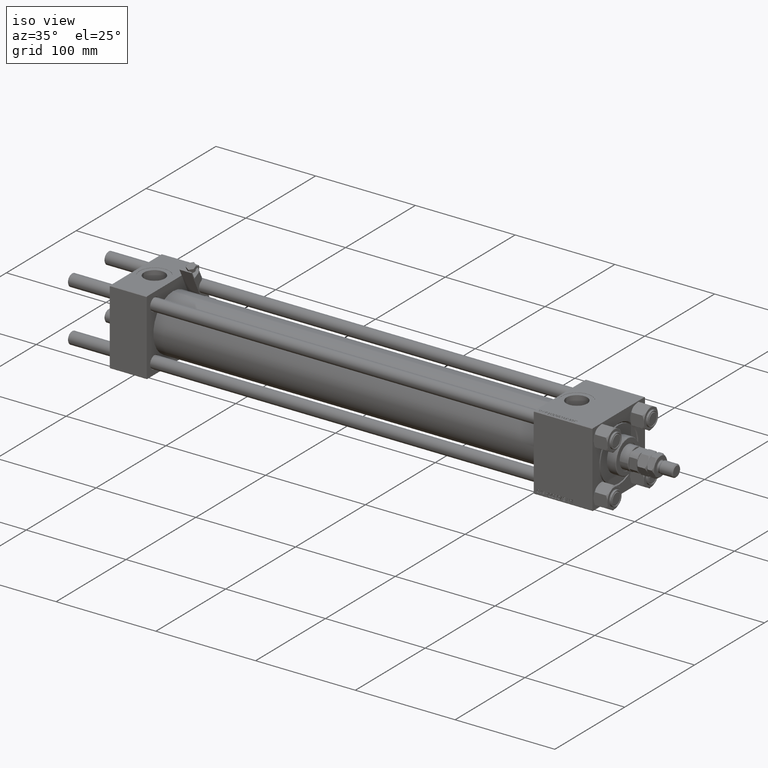
[diagram: clean part render]
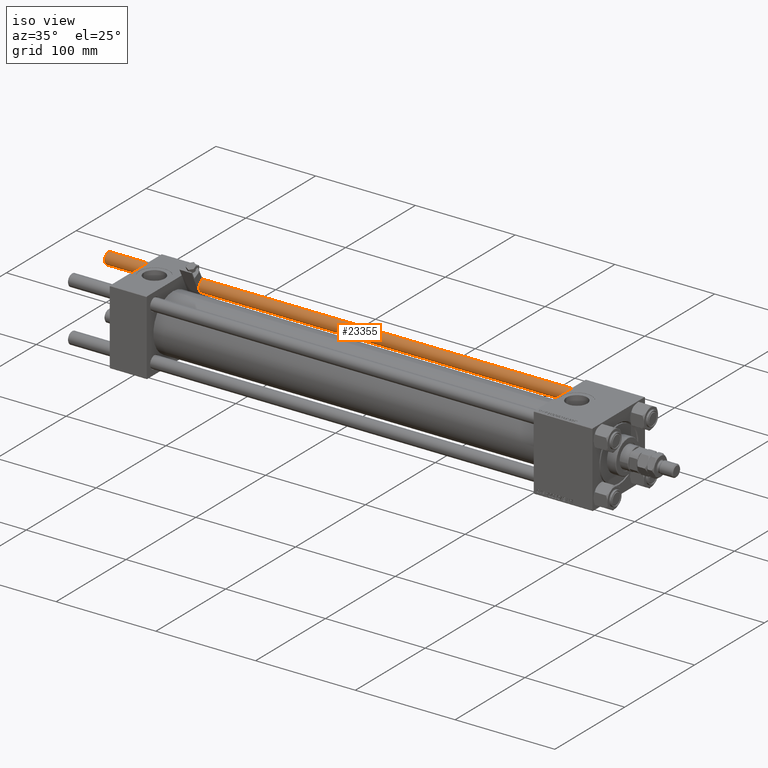
[diagram: same view with one face highlighted and labeled with its STEP entity id]
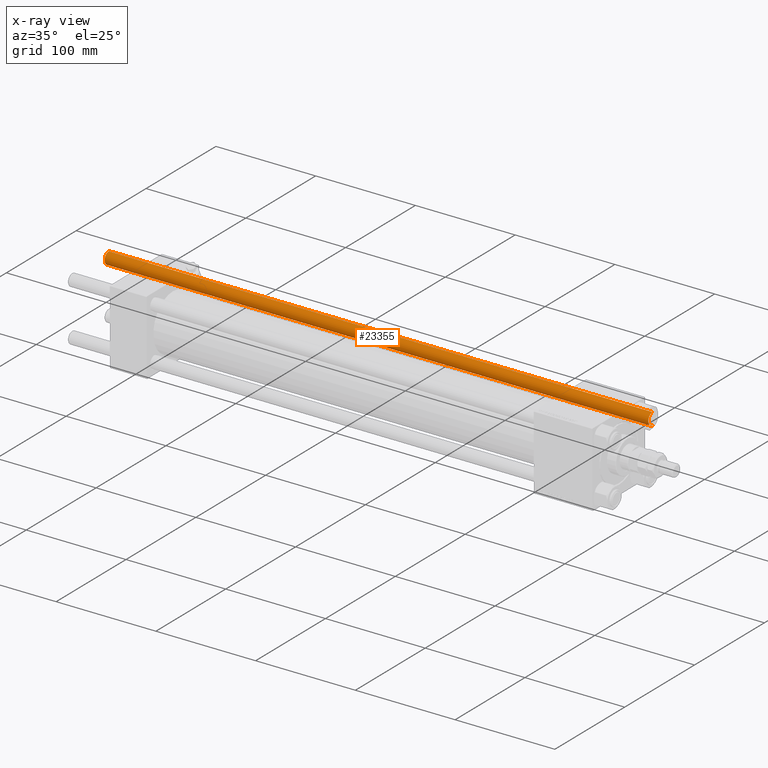
[diagram: x-ray of the same camera — body ghosted, the highlighted face saturated]
A machine part, iso view. The second image highlights one B-rep face of the part: STEP entity #23355.
The next image is the same camera in x-ray: the body ghosted, the highlighted face saturated — about 0% of this face is hidden behind the body in this view.
In plain terms, the highlighted cylindrical surface (edge-blend (fillet) strip) has radius 6 mm, axis along (-1, -0, -0).
Its self-contained STEP definition (entity closure, byte-faithful):
#1977 = DIRECTION ( 'NONE',  ( -0.000000000000000000, -0.000000000000000000, -1.000000000000000000 ) ) ;
#4197 = DIRECTION ( 'NONE',  ( -0.000000000000000000, -0.000000000000000000, 1.000000000000000000 ) ) ;
#5131 = CARTESIAN_POINT ( 'NONE',  ( 6.000000000000000888, 7.347880794884120722E-16, 546.0000000000000000 ) ) ;
#5799 = EDGE_CURVE ( 'NONE', #40992, #20595, #49732, .T. ) ;
#6534 = AXIS2_PLACEMENT_3D ( 'NONE', #40951, #9455, #44932 ) ;
#8322 = CARTESIAN_POINT ( 'NONE',  ( -6.000000000000000888, 0.000000000000000000, 545.5000000000001137 ) ) ;
#8339 = CARTESIAN_POINT ( 'NONE',  ( 0.000000000000000000, 0.000000000000000000, 546.0000000000000000 ) ) ;
#8848 = EDGE_CURVE ( 'NONE', #12119, #20595, #49099, .T. ) ;
#9192 = CARTESIAN_POINT ( 'NONE',  ( -6.000000000000000888, 0.000000000000000000, 0.5000000000000559552 ) ) ;
#9455 = DIRECTION ( 'NONE',  ( 0.000000000000000000, 0.000000000000000000, -1.000000000000000000 ) ) ;
#12119 = VERTEX_POINT ( 'NONE', #47906 ) ;
#12322 = FACE_OUTER_BOUND ( 'NONE', #27417, .T. ) ;
#13899 = DIRECTION ( 'NONE',  ( -1.000000000000000000, 0.000000000000000000, 0.000000000000000000 ) ) ;
#17603 = AXIS2_PLACEMENT_3D ( 'NONE', #32006, #4197, #48949 ) ;
#19211 = CARTESIAN_POINT ( 'NONE',  ( -6.000000000000000888, 0.000000000000000000, 546.0000000000000000 ) ) ;
#20595 = VERTEX_POINT ( 'NONE', #21337 ) ;
#21012 = DIRECTION ( 'NONE',  ( -0.000000000000000000, -0.000000000000000000, -1.000000000000000000 ) ) ;
#21337 = CARTESIAN_POINT ( 'NONE',  ( 6.000000000000000888, 7.347880794884120722E-16, 0.5000000000000559552 ) ) ;
#22384 = EDGE_CURVE ( 'NONE', #51218, #40992, #34843, .T. ) ;
#23355 = ADVANCED_FACE ( 'NONE', ( #12322 ), #44611, .T. ) ;
#27002 = EDGE_CURVE ( 'NONE', #12119, #51218, #51377, .T. ) ;
#27417 = EDGE_LOOP ( 'NONE', ( #27870, #49047, #39347, #34470 ) ) ;
#27859 = VECTOR ( 'NONE', #21012, 1000.000000000000000 ) ;
#27870 = ORIENTED_EDGE ( 'NONE', *, *, #8848, .F. ) ;
#32006 = CARTESIAN_POINT ( 'NONE',  ( 0.000000000000000000, 0.000000000000000000, 0.5000000000000559552 ) ) ;
#34470 = ORIENTED_EDGE ( 'NONE', *, *, #5799, .T. ) ;
#34843 = LINE ( 'NONE', #19211, #37742 ) ;
#37742 = VECTOR ( 'NONE', #51018, 1000.000000000000000 ) ;
#39347 = ORIENTED_EDGE ( 'NONE', *, *, #22384, .T. ) ;
#40951 = CARTESIAN_POINT ( 'NONE',  ( 0.000000000000000000, 0.000000000000000000, 545.5000000000001137 ) ) ;
#40992 = VERTEX_POINT ( 'NONE', #9192 ) ;
#44611 = CYLINDRICAL_SURFACE ( 'NONE', #47936, 6.000000000000000888 ) ;
#44932 = DIRECTION ( 'NONE',  ( 1.000000000000000000, 0.000000000000000000, 0.000000000000000000 ) ) ;
#47906 = CARTESIAN_POINT ( 'NONE',  ( 6.000000000000000888, 7.347880794884120722E-16, 545.5000000000001137 ) ) ;
#47936 = AXIS2_PLACEMENT_3D ( 'NONE', #8339, #1977, #13899 ) ;
#48949 = DIRECTION ( 'NONE',  ( 1.000000000000000000, 0.000000000000000000, 0.000000000000000000 ) ) ;
#49047 = ORIENTED_EDGE ( 'NONE', *, *, #27002, .T. ) ;
#49099 = LINE ( 'NONE', #5131, #27859 ) ;
#49732 = CIRCLE ( 'NONE', #17603, 6.000000000000000888 ) ;
#51018 = DIRECTION ( 'NONE',  ( -0.000000000000000000, -0.000000000000000000, -1.000000000000000000 ) ) ;
#51218 = VERTEX_POINT ( 'NONE', #8322 ) ;
#51377 = CIRCLE ( 'NONE', #6534, 6.000000000000000888 ) ;